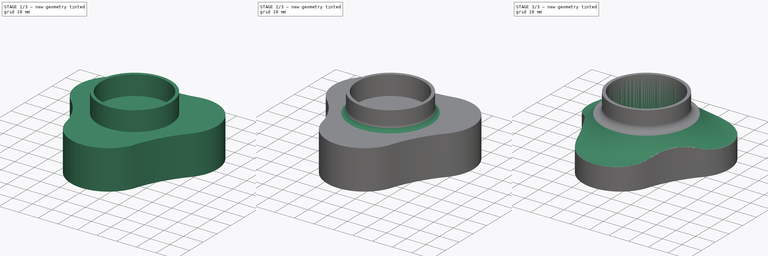
[diagram: build sequence overview — one tinted view per stage of 3, left to right]
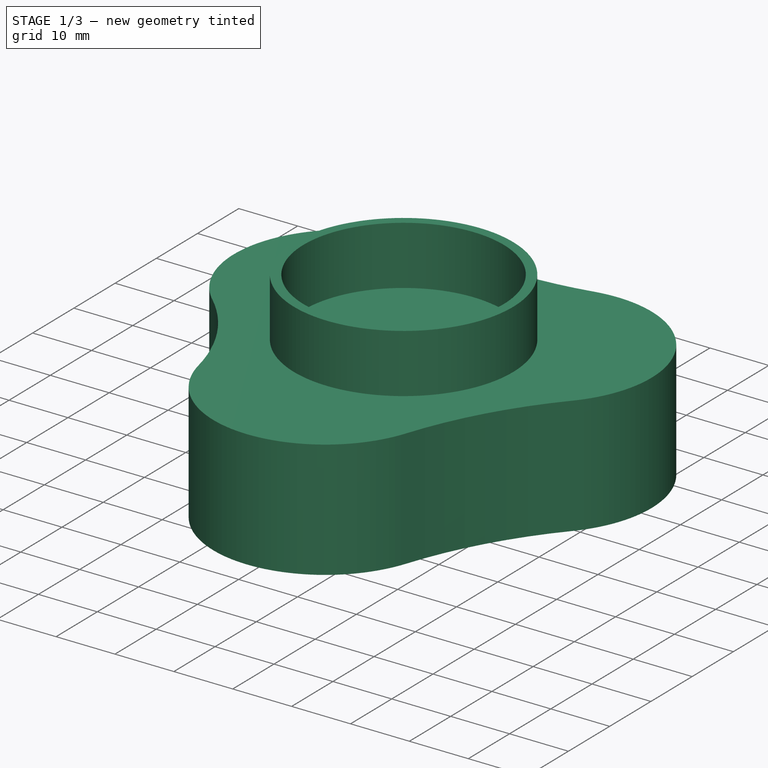
[diagram: stage 1 of 3 — iso view after this stage's code; geometry added in this stage tinted green]
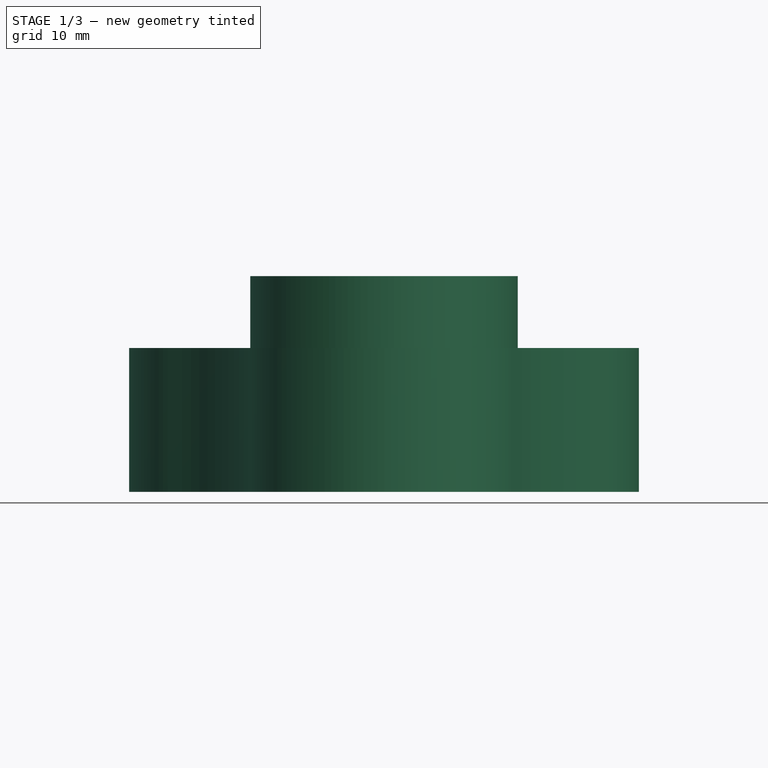
[diagram: stage 1 of 3 — front view after this stage's code; geometry added in this stage tinted green]
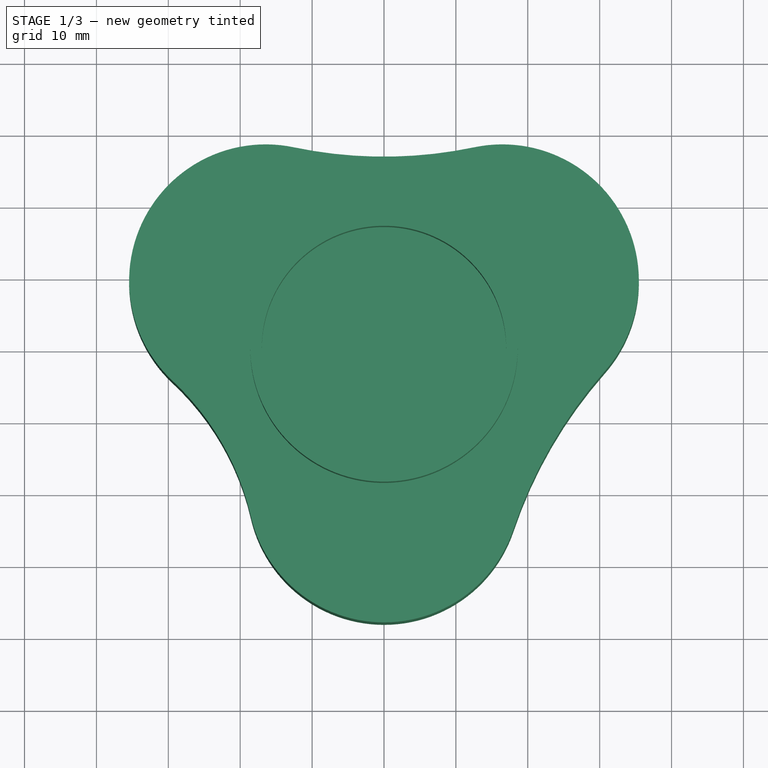
[diagram: stage 1 of 3 — top view after this stage's code; geometry added in this stage tinted green]
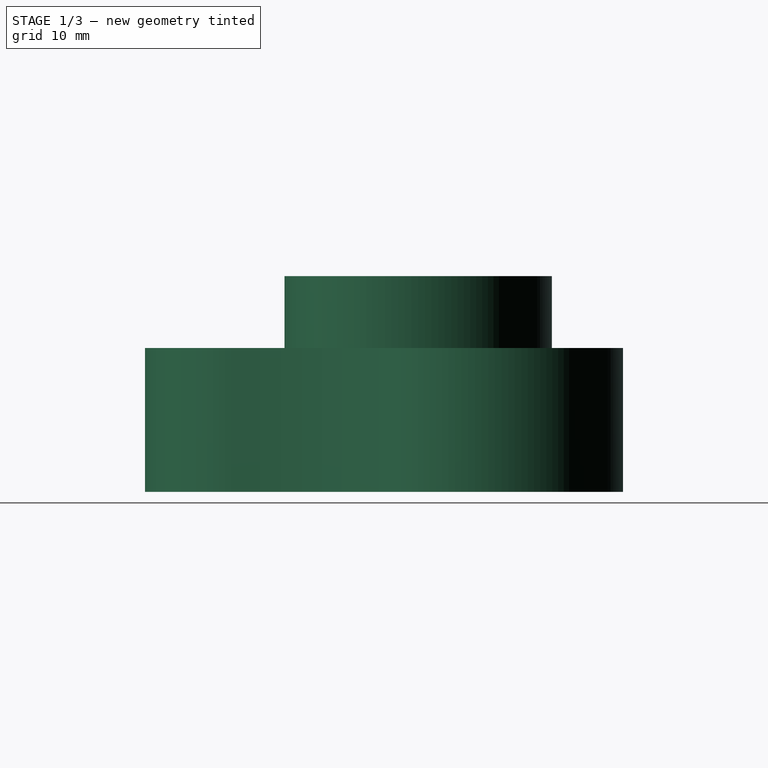
[diagram: stage 1 of 3 — right view after this stage's code; geometry added in this stage tinted green]
FCSTD DOCUMENT  (FreeCAD 1.1R20260325 (Git shallow))
Label: Datum002
License: All rights reserved
LicenseURL: https://en.wikipedia.org/wiki/All_rights_reserved
objects: Sketcher::SketchObject×5, TechDraw::DrawViewDimension×3, PartDesign::Pad×2, PartDesign::Pocket×2, App::Point×1, PartDesign::Fillet×1, PartDesign::Groove×1, PartDesign::Body×1, TechDraw::DrawSVGTemplate×1, TechDraw::DrawProjGroupItem×1, TechDraw::DrawPage×1
note: 33 computed .brp shape members not serialized (recipe doc carries the construction recipe); baked Part::Feature solids carry a one-line shape summary decoded from their .brp

FEATURE [App::Point] Origin001
  Role = Origin
FEATURE [Sketcher::SketchObject] Sketch
  ArcFitTolerance = 1e-06
  AttachmentSupport = -> [Origin]
  ExternalTypes = [0]
  FullyConstrained = false
  MakeInternals = false
  MapMode = 5
  _ExternalGeoVersion = 1
  sketch-geometry (13):
    g0: Circle [constr] CenterX=0 CenterY=0 CenterZ=0 NormalX=0 NormalY=0 NormalZ=1 AngleXU=0 Radius=38
    g1: LineSegment [constr] StartX=0 StartY=0 StartZ=0 EndX=32.909 EndY=19 EndZ=0
    g2: LineSegment [constr] StartX=0 StartY=0 StartZ=0 EndX=-32.909 EndY=19 EndZ=0
    g3: LineSegment [constr] StartX=0 StartY=0 StartZ=0 EndX=0 EndY=-38 EndZ=0
    g4: ArcOfCircle CenterX=16.4545 CenterY=9.5 CenterZ=0 NormalX=0 NormalY=0 NormalZ=1 AngleXU=0 Radius=19 StartAngle=5.56073 EndAngle=8.06093
    g5: ArcOfCircle CenterX=-16.4545 CenterY=9.5 CenterZ=0 NormalX=0 NormalY=0 NormalZ=1 AngleXU=0 Radius=19 StartAngle=1.36385 EndAngle=3.96171
    g6: LineSegment [constr] StartX=0 StartY=0 StartZ=0 EndX=-32.909 EndY=-19 EndZ=0
    g7: LineSegment [constr] StartX=0 StartY=0 StartZ=0 EndX=32.909 EndY=-19 EndZ=0
    g8: ArcOfCircle CenterX=8.30816e-10 CenterY=87.8721 CenterZ=0 NormalX=0 NormalY=0 NormalZ=1 AngleXU=0 Radius=61.0808 StartAngle=4.50544 EndAngle=4.91934
    g9: ArcOfCircle CenterX=78.9395 CenterY=-45.5757 CenterZ=0 NormalX=0 NormalY=0 NormalZ=1 AngleXU=0 Radius=64.2929 StartAngle=2.41914 EndAngle=2.81685
    g10: ArcOfCircle CenterX=-54.8688 CenterY=-31.6785 CenterZ=0 NormalX=0 NormalY=0 NormalZ=1 AngleXU=0 Radius=37.3145 StartAngle=0.227084 EndAngle=0.820114
    g11: ArcOfCircle CenterX=0 CenterY=-19 CenterZ=0 NormalX=0 NormalY=0 NormalZ=1 AngleXU=0 Radius=19 StartAngle=3.36868 EndAngle=5.95844
    g12: LineSegment [constr] StartX=-35.4494 StartY=9.06012 StartZ=0 EndX=35.4494 EndY=9.06012 EndZ=0
  constraints (29):
    c: Diameter(g0) = 76
    c: Coincident(g0,g-1)
    c: Coincident(g1,g0)
    c: PointOnObject(g1,g0)
    c: Coincident(g2,g0)
    c: PointOnObject(g2,g0)
    c: Coincident(g3,g0)
    c: PointOnObject(g3,g0)
    c: Vertical(g3)
    c: Angle(g1,g2) = 2.0944
    c: Angle(g2,g3) = 2.0944
    c: Symmetric(g1,g1,g4)
    c: Symmetric(g2,g2,g5)
    c: Symmetric(g3,g3,g11)
    c: Coincident(g6,g0)
    c: PointOnObject(g6,g0)
    c: Angle(g-1,g6) = 0.523599
    c: Coincident(g7,g0)
    c: PointOnObject(g7,g0)
    c: Angle(g7,g-1) = 0.523599
    c: Tangent(g8,g5) = 1.5708
    c: Tangent(g8,g4) = 1.5708
    c: Tangent(g9,g4) = 1.5708
    c: Tangent(g9,g11) = 1.5708
    c: Tangent(g10,g5) = 1.5708
    c: Tangent(g10,g11) = 1.5708
    c: PointOnObject(g12,g5)
    c: PointOnObject(g12,g4)
    c: Horizontal(g12)
FEATURE [PartDesign::Pad] Pad
  Direction = (0,0,1)
  Length = 20
  Length2 = 10
  Profile = -> Sketch
  ReferenceAxis = -> Sketch [N_Axis]
  Refine = true
  SideType = 0
  Suppressed = false
  Type = 0
  Type2 = 0
FEATURE [Sketcher::SketchObject] Sketch001
  ArcFitTolerance = 1e-06
  AttachmentSupport = -> [Pad]
  ExternalTypes = [0]
  FullyConstrained = true
  MakeInternals = false
  MapMode = 5
  Placement = pos=(0,0,20) rot=(0,0,1;0rad)
  _ExternalGeoVersion = 1
  sketch-geometry (2):
    g0: Circle CenterX=0 CenterY=0 CenterZ=0 NormalX=0 NormalY=0 NormalZ=1 AngleXU=0 Radius=17
    g1: Circle CenterX=0 CenterY=0 CenterZ=0 NormalX=0 NormalY=0 NormalZ=1 AngleXU=0 Radius=18.6
  constraints (4):
    c: Diameter(g0) = 34
    c: Coincident(g0,g-1)
    c: Diameter(g1) = 37.2
    c: Coincident(g1,g0)
FEATURE [PartDesign::Pad] Pad001
  BaseFeature = -> Pad
  Direction = (0,0,1)
  Length = 10
  Length2 = 10
  Profile = -> Sketch001
  ReferenceAxis = -> Sketch001 [N_Axis]
  Refine = true
  SideType = 0
  Suppressed = false
  Type = 0
  Type2 = 0
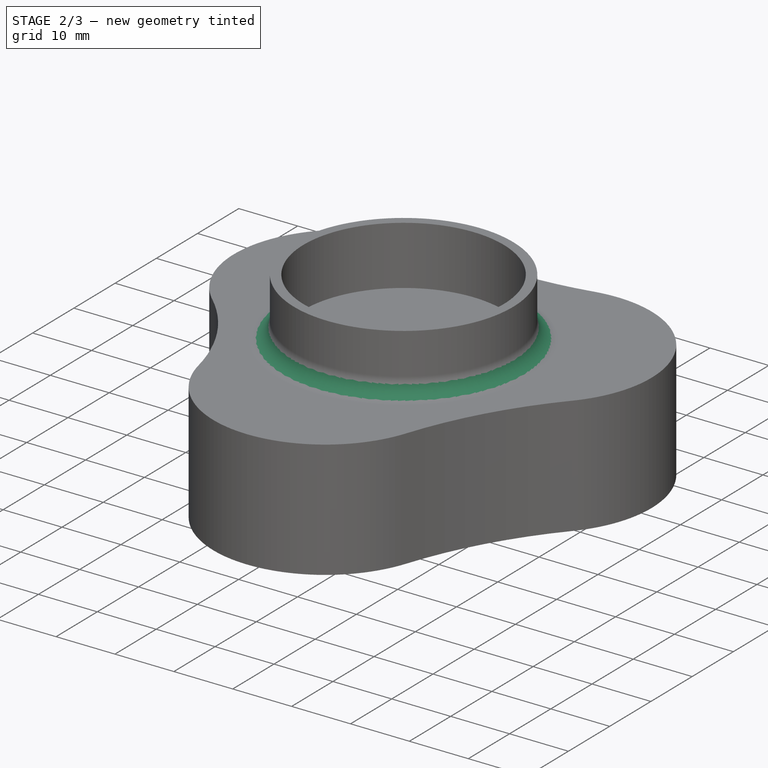
[diagram: stage 2 of 3 — iso view after this stage's code; geometry added in this stage tinted green]
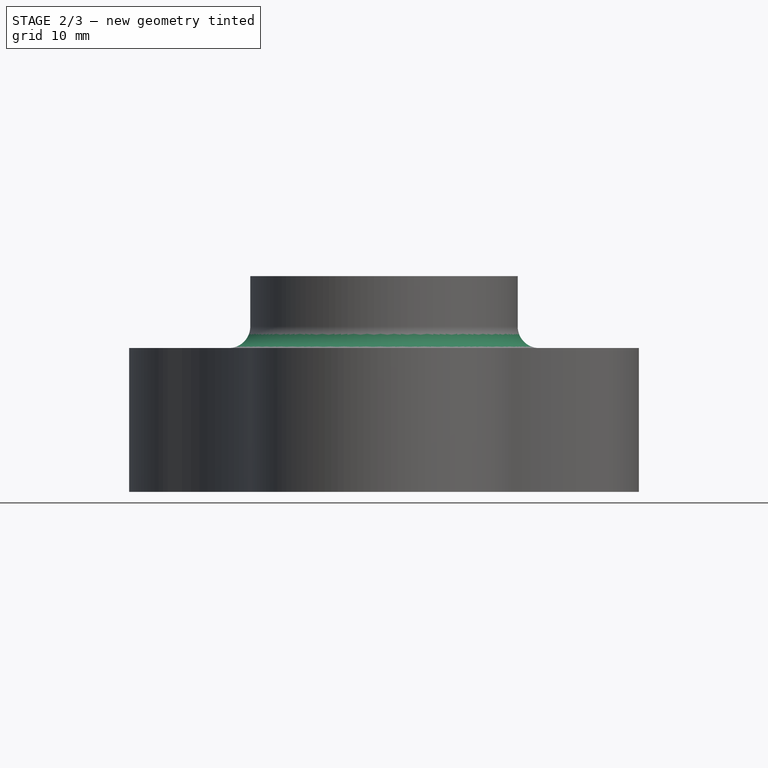
[diagram: stage 2 of 3 — front view after this stage's code; geometry added in this stage tinted green]
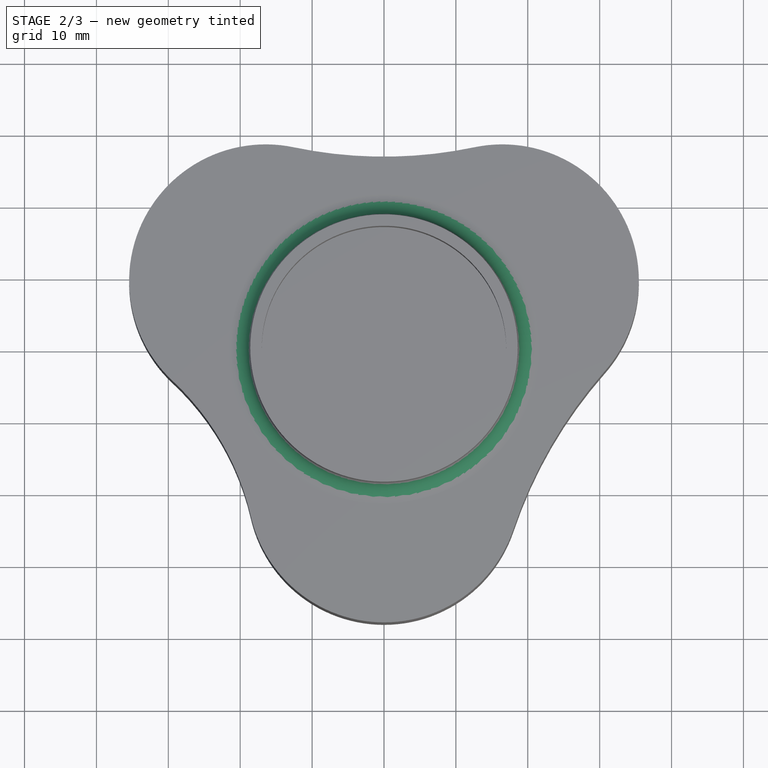
[diagram: stage 2 of 3 — top view after this stage's code; geometry added in this stage tinted green]
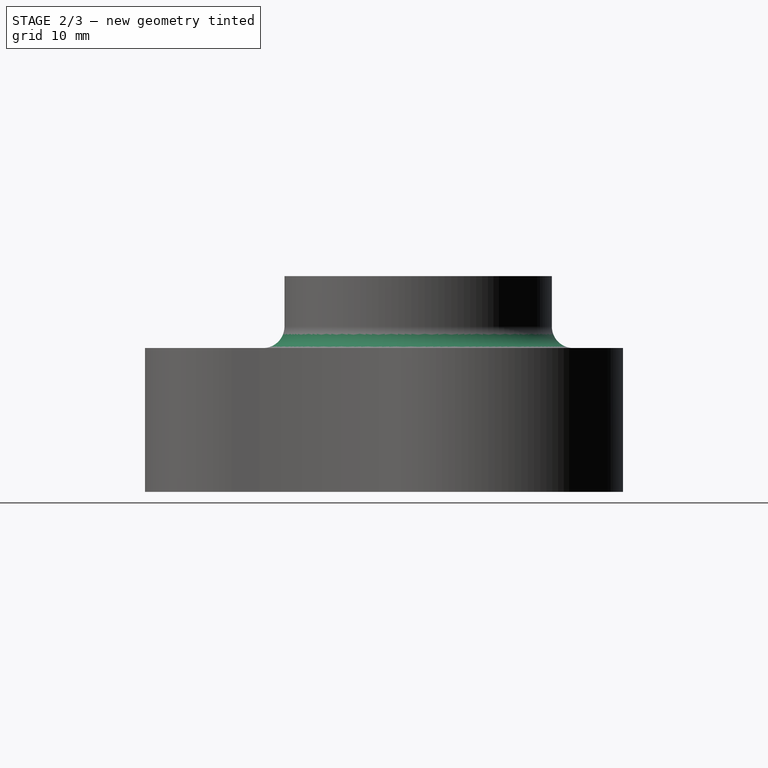
[diagram: stage 2 of 3 — right view after this stage's code; geometry added in this stage tinted green]
FEATURE [PartDesign::Fillet] Fillet
  Base = -> Pad001 [Edge17]
  BaseFeature = -> Pad001
  Radius = 3
  Refine = true
  SupportTransform = false
  Suppressed = false
  UseAllEdges = false
FEATURE [Sketcher::SketchObject] Sketch002
  ArcFitTolerance = 1e-06
  AttachmentSupport = -> [Fillet]
  ExternalTypes = [0,0,0,0,0,0]
  FullyConstrained = false
  MakeInternals = false
  MapMode = 5
  Placement = pos=(0,0,0) rot=(1,0,0;3.14159rad)
  _ExternalGeoVersion = 1
  sketch-geometry (6):
    g0: ArcOfCircle CenterX=-54.8688 CenterY=31.6785 CenterZ=0 NormalX=0 NormalY=0 NormalZ=1 AngleXU=0 Radius=39.8145 StartAngle=5.46307 EndAngle=6.0561
    g1: ArcOfCircle CenterX=0 CenterY=19 CenterZ=0 NormalX=0 NormalY=0 NormalZ=1 AngleXU=0 Radius=16.5 StartAngle=0.324741 EndAngle=2.91451
    g2: ArcOfCircle CenterX=78.9395 CenterY=45.5757 CenterZ=0 NormalX=0 NormalY=0 NormalZ=1 AngleXU=0 Radius=66.7929 StartAngle=3.46633 EndAngle=3.86405
    g3: ArcOfCircle CenterX=16.4545 CenterY=-9.5 CenterZ=0 NormalX=0 NormalY=0 NormalZ=1 AngleXU=0 Radius=16.5 StartAngle=4.50544 EndAngle=7.00564
    g4: ArcOfCircle CenterX=8.30816e-10 CenterY=-87.8721 CenterZ=0 NormalX=0 NormalY=0 NormalZ=1 AngleXU=0 Radius=63.5808 StartAngle=1.36385 EndAngle=1.77774
    g5: ArcOfCircle CenterX=-16.4545 CenterY=-9.5 CenterZ=0 NormalX=0 NormalY=0 NormalZ=1 AngleXU=0 Radius=16.5 StartAngle=2.32148 EndAngle=4.91934
  constraints (6):
    c: Tangent(g0,g1) = 1.5708
    c: Tangent(g0,g5) = 1.5708
    c: Tangent(g1,g2) = 1.5708
    c: Tangent(g2,g3) = 1.5708
    c: Tangent(g3,g4) = 1.5708
    c: Tangent(g4,g5) = 1.5708
FEATURE [PartDesign::Pocket] Pocket
  BaseFeature = -> Fillet
  Direction = (0,0,1)
  Length = 10
  Length2 = 5
  Profile = -> Sketch002
  ReferenceAxis = -> Sketch002 [N_Axis]
  Refine = true
  SideType = 0
  Suppressed = false
  Type = 0
  Type2 = 0
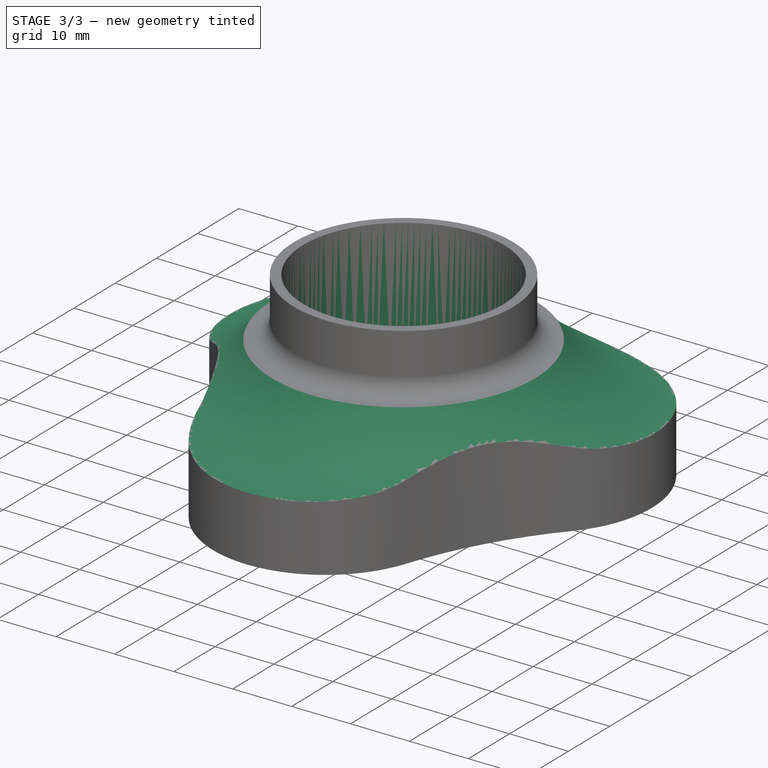
[diagram: stage 3 of 3 — iso view after this stage's code; geometry added in this stage tinted green]
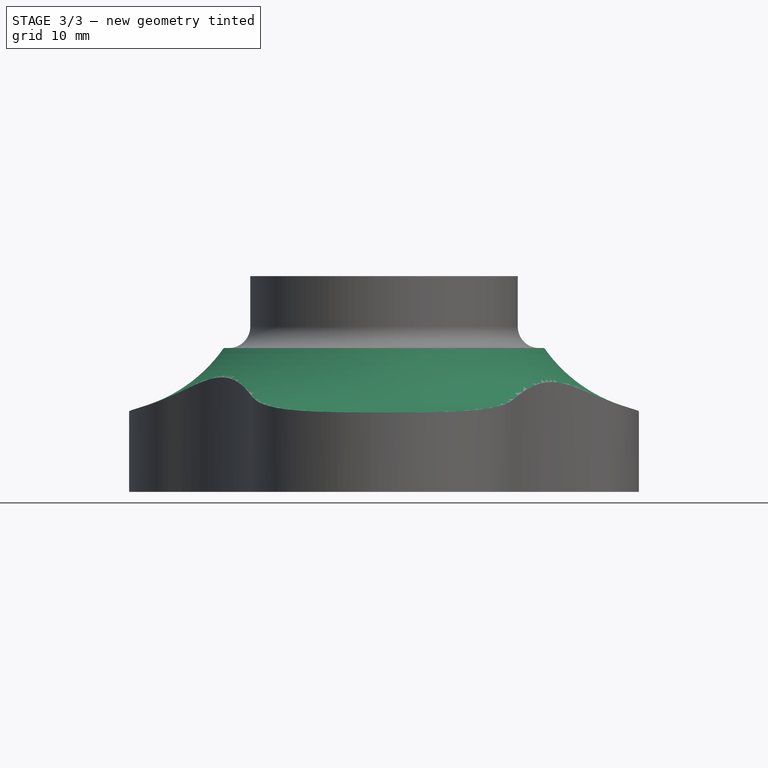
[diagram: stage 3 of 3 — front view after this stage's code; geometry added in this stage tinted green]
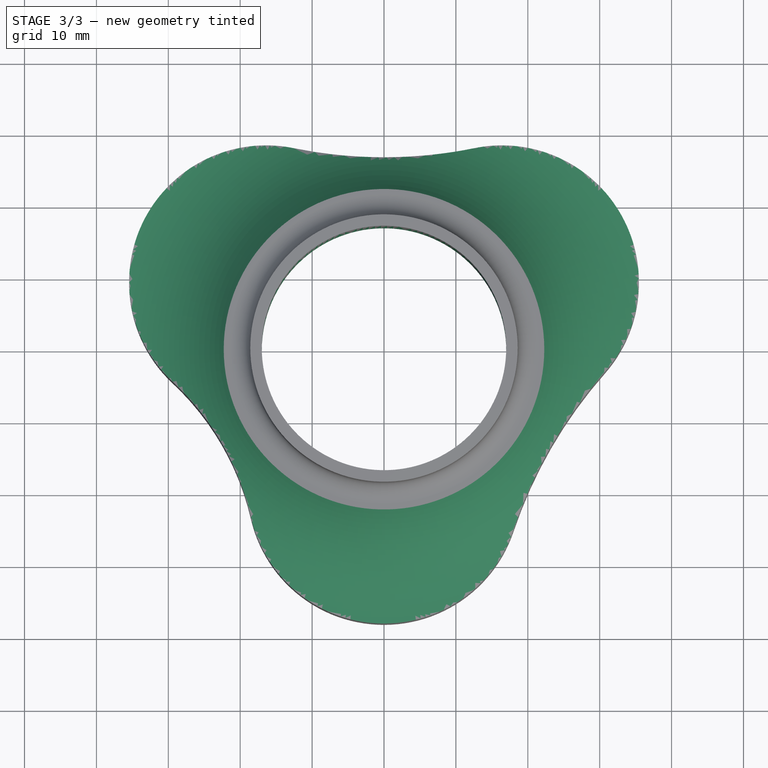
[diagram: stage 3 of 3 — top view after this stage's code; geometry added in this stage tinted green]
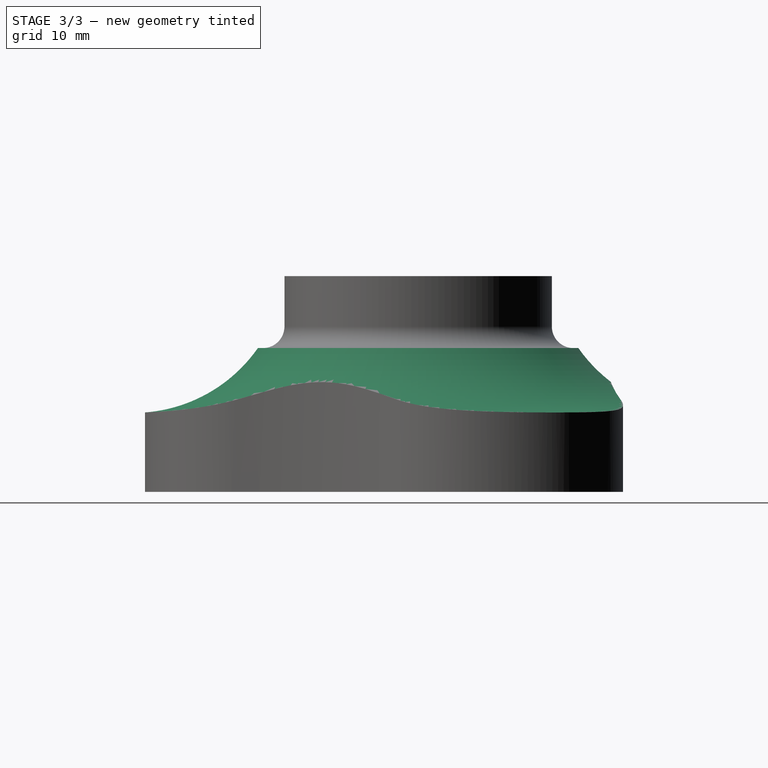
[diagram: stage 3 of 3 — right view after this stage's code; geometry added in this stage tinted green]
FEATURE [Sketcher::SketchObject] Sketch003
  ArcFitTolerance = 1e-06
  AttachmentSupport = -> [Origin]
  ExternalTypes = [0]
  FullyConstrained = false
  MakeInternals = false
  MapMode = 5
  Placement = pos=(0,0,0) rot=(1,0,0;1.5708rad)
  _ExternalGeoVersion = 1
  sketch-geometry (5):
    g0: ArcOfCircle CenterX=39.6175 CenterY=32.1267 CenterZ=0 NormalX=0 NormalY=0 NormalZ=1 AngleXU=0 Radius=21.1463 StartAngle=3.61653 EndAngle=4.6879
    g1: LineSegment StartX=20.8117 StartY=22.4569 StartZ=0 EndX=19.578 EndY=24.8562 EndZ=0
    g2: LineSegment StartX=19.578 StartY=24.8562 StartZ=0 EndX=29.6055 EndY=32.059 EndZ=0
    g3: LineSegment StartX=29.6055 StartY=32.059 StartZ=0 EndX=48.3442 EndY=23.8059 EndZ=0
    g4: LineSegment StartX=48.3442 StartY=23.8059 StartZ=0 EndX=39.0997 EndY=10.9868 EndZ=0
  constraints (5):
    c: Tangent(g0,g1) = 1.5708
    c: Coincident(g1,g2)
    c: Coincident(g2,g3)
    c: Coincident(g3,g4)
    c: Coincident(g4,g0)
FEATURE [PartDesign::Groove] Groove
  Angle = 360
  Angle2 = 0
  Axis = (0,2e-16,1)
  Base = (0,0,0)
  BaseFeature = -> Pocket
  Profile = -> Sketch003
  ReferenceAxis = -> Sketch003 [V_Axis]
  Refine = true
  Suppressed = false
  Type = 0
FEATURE [Sketcher::SketchObject] Sketch004
  ArcFitTolerance = 1e-06
  AttachmentSupport = -> [Groove]
  ExternalGeometry = -> [Groove]
  ExternalTypes = [0]
  FullyConstrained = true
  MakeInternals = false
  MapMode = 5
  Placement = pos=(0,0,20) rot=(0,0,1;0rad)
  _ExternalGeoVersion = 1
FEATURE [PartDesign::Pocket] Pocket001
  BaseFeature = -> Groove
  Direction = (0,0,-1)
  Length = 5
  Length2 = 5
  Profile = -> Sketch004
  ReferenceAxis = -> Sketch004 [N_Axis]
  Refine = true
  SideType = 0
  Suppressed = false
  Type = 1
  Type2 = 0
FEATURE [PartDesign::Body] Body
  AllowCompound = true
  Group = -> [Sketch,Pad,Sketch001,Pad001,Fillet,Sketch002,Pocket,Sketch003,Groove,Sketch004,Pocket001]
  Origin = -> Origin
  Tip = -> Pocket001
FEATURE [TechDraw::DrawSVGTemplate] Template
  Height = 210
  Orientation = 1
  Template = /Applications/FreeCAD.app/Contents/Resources/share/Mod/TechDraw/Templates/Default_Template_A4_Landscape.svg
  Width = 297
FEATURE [TechDraw::DrawProjGroupItem] View
  CoarseView = false
  Direction = (0,0,1)
  Focus = 100
  HardHidden = false
  IsoCount = 0
  IsoHidden = false
  IsoVisible = false
  LockPosition = false
  Perspective = false
  Rotation = 0
  RotationVector = (1,0,0)
  ScaleType = 0
  ScrubCount = 1
  SeamHidden = false
  SeamVisible = false
  SmoothHidden = false
  SmoothVisible = true
  Source = -> [Pocket001]
  Type = 0
  X = 148.5
  XDirection = (1,0,0)
  Y = 105
FEATURE [TechDraw::DrawViewDimension] Dimension
  AngleOverride = false
  Arbitrary = false
  ArbitraryTolerances = false
  BoxCorners = (2) [(-35.4545,-33.25,0),(35.4545,33.25,0)]
  EqualTolerance = true
  ExtensionAngle = 0
  FormatSpec = %.2w
  FormatSpecOverTolerance = %+.2w
  FormatSpecUnderTolerance = %+.2w
  Inverted = false
  LineAngle = 0
  LockPosition = false
  MeasureType = 1
  OverTolerance = 0
  References2D = -> [View]
  Rotation = 0
  ScaleType = 0
  ShowUnits = false
  TheoreticalExact = false
  Type = 0
  UnderTolerance = 0
  UseActualArea = true
  X = 17.8
  Y = 44.2105
FEATURE [TechDraw::DrawViewDimension] Dimension001
  AngleOverride = false
  Arbitrary = false
  ArbitraryTolerances = false
  BoxCorners = (2) [(-35.4545,-33.25,0),(35.4545,33.25,0)]
  EqualTolerance = true
  ExtensionAngle = 0
  FormatSpec = ⌀%.2w
  FormatSpecOverTolerance = %+.2w
  FormatSpecUnderTolerance = %+.2w
  Inverted = false
  LineAngle = 0
  LockPosition = false
  MeasureType = 1
  OverTolerance = 0
  References2D = -> [View]
  Rotation = 0
  ScaleType = 0
  ShowUnits = false
  TheoreticalExact = false
  Type = 5
  UnderTolerance = 0
  UseActualArea = true
  X = 48.2227
  Y = -4.67791
FEATURE [TechDraw::DrawViewDimension] Dimension002
  AngleOverride = false
  Arbitrary = false
  ArbitraryTolerances = false
  BoxCorners = (2) [(-35.4545,-33.25,0),(35.4545,33.25,0)]
  EqualTolerance = true
  ExtensionAngle = 0
  FormatSpec = ⌀%.2w
  FormatSpecOverTolerance = %+.2w
  FormatSpecUnderTolerance = %+.2w
  Inverted = false
  LineAngle = 0
  LockPosition = false
  MeasureType = 1
  OverTolerance = 0
  References2D = -> [View]
  Rotation = 0
  ScaleType = 0
  ShowUnits = false
  TheoreticalExact = false
  Type = 5
  UnderTolerance = 0
  UseActualArea = true
  X = 58.405
  Y = -22.0354
FEATURE [TechDraw::DrawPage] Page
  KeepUpdated = true
  NextBalloonIndex = 1
  ProjectionType = 0
  Template = -> Template
  Views = -> [View,Dimension,Dimension001,Dimension002]
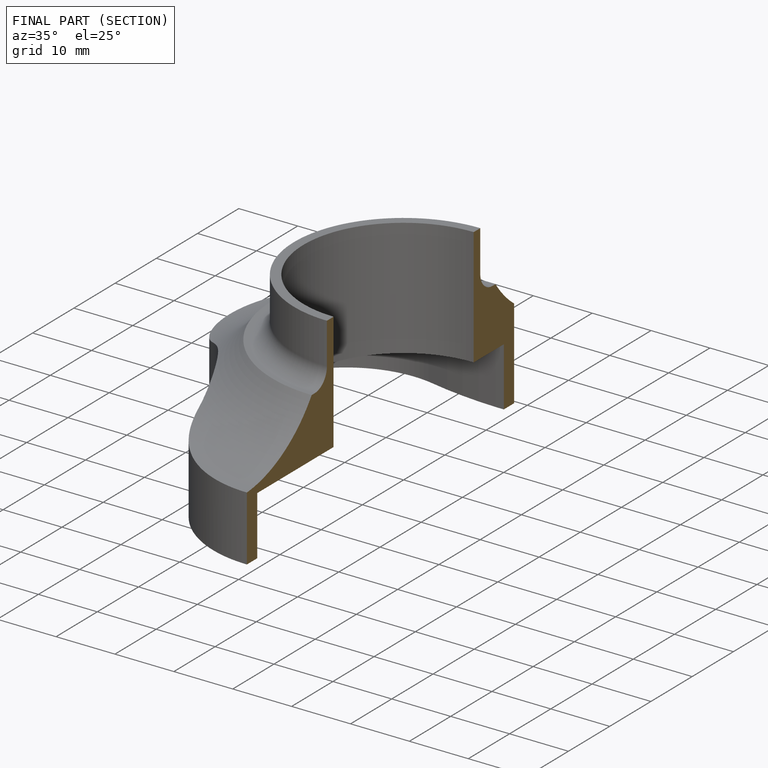
[diagram: finished part — half-section view (interior)]
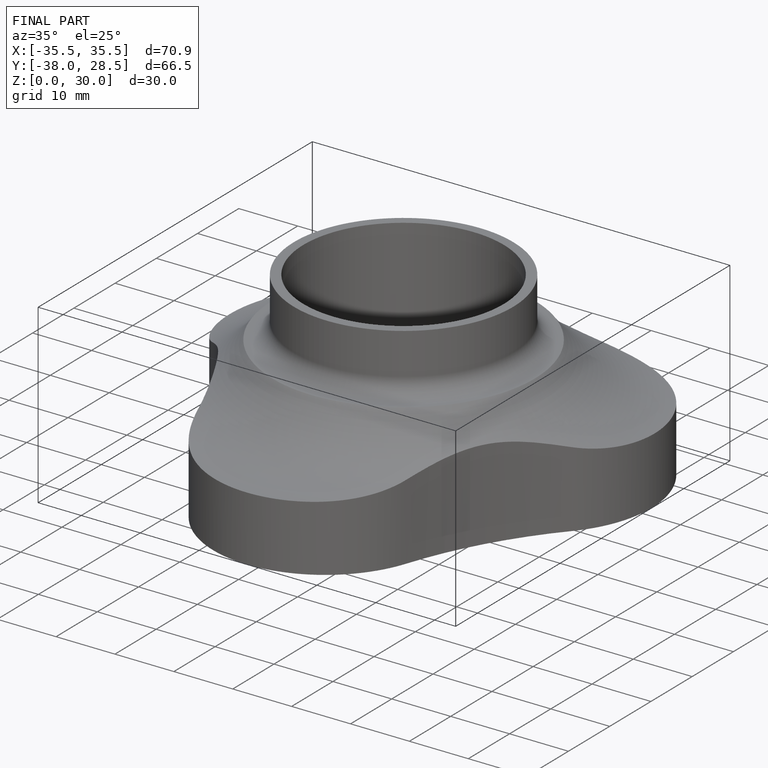
[diagram: finished part — iso view with bounding-box wireframe]
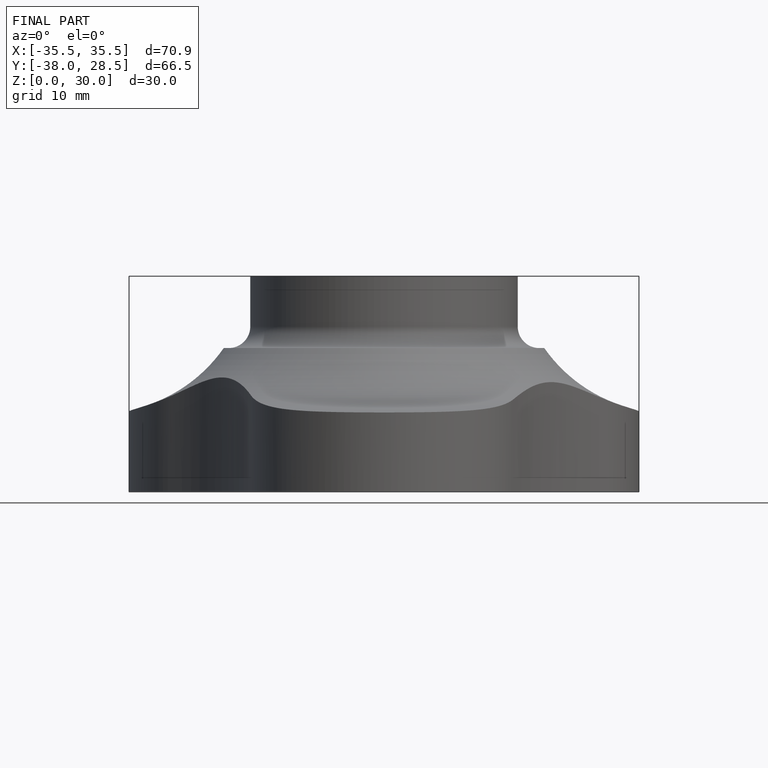
[diagram: finished part — front view with bounding-box wireframe]
